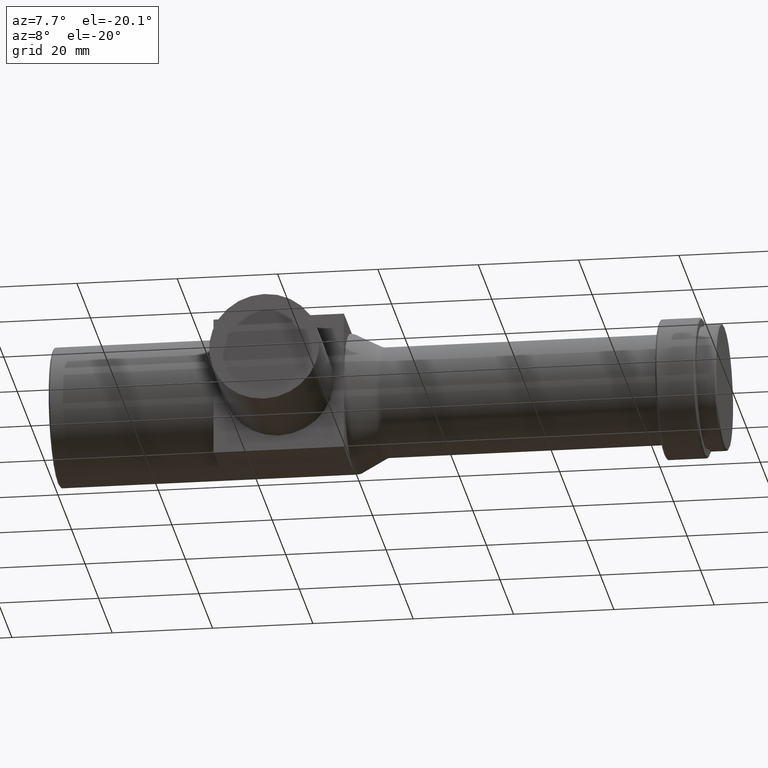
[diagram: clean part render]
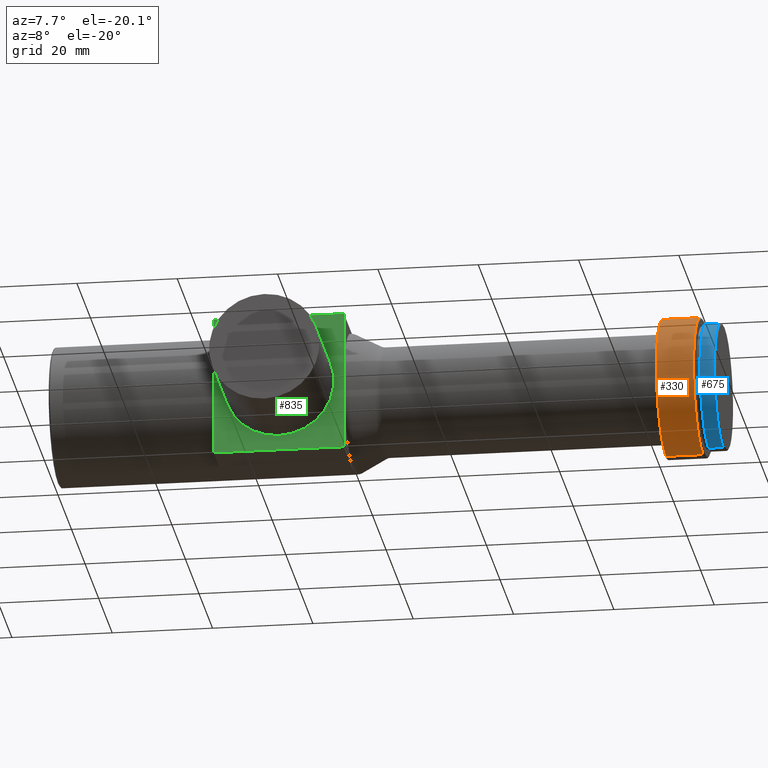
[diagram: same view with three faces highlighted in distinct colors, each labeled with its STEP entity id]
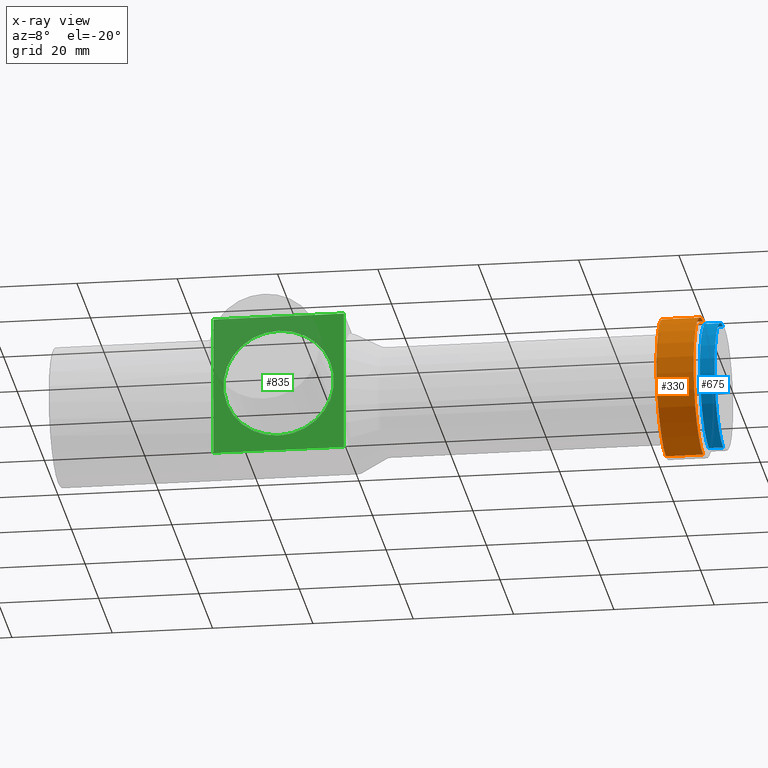
[diagram: x-ray of the same camera — body ghosted, the three highlighted faces saturated]
A machine part, auxiliary view with three faces highlighted in distinct colors.
The next image is the same camera in x-ray (body ghosted, the three faces saturated) — at least one of them is partly hidden behind the body in this view.
Their STEP definitions:

[orange] entity #330 — the highlighted cylindrical surface (partial cylindrical patch) has radius 14 mm, axis along (-1, -0, -0).
#30 = CIRCLE ( 'NONE', #1086, 14.00000000000000000 ) ;
#59 = CARTESIAN_POINT ( 'NONE',  ( 128.6000000000000200, 0.0000000000000000000, 14.00000000000000000 ) ) ;
#69 = VERTEX_POINT ( 'NONE', #231 ) ;
#75 = CARTESIAN_POINT ( 'NONE',  ( 121.2000000000000000, 1.714505518806294600E-015, 14.00000000000000000 ) ) ;
#122 = VERTEX_POINT ( 'NONE', #59 ) ;
#164 = FACE_OUTER_BOUND ( 'NONE', #458, .T. ) ;
#170 = DIRECTION ( 'NONE',  ( -1.000000000000000000, -0.0000000000000000000, -0.0000000000000000000 ) ) ;
#189 = VECTOR ( 'NONE', #360, 1000.000000000000000 ) ;
#197 = EDGE_CURVE ( 'NONE', #873, #122, #906, .T. ) ;
#223 = VERTEX_POINT ( 'NONE', #75 ) ;
#231 = CARTESIAN_POINT ( 'NONE',  ( 121.2000000000000000, 0.0000000000000000000, -14.00000000000000000 ) ) ;
#244 = LINE ( 'NONE', #934, #446 ) ;
#249 = DIRECTION ( 'NONE',  ( -1.000000000000000000, -0.0000000000000000000, -0.0000000000000000000 ) ) ;
#252 = EDGE_CURVE ( 'NONE', #873, #69, #244, .T. ) ;
#286 = AXIS2_PLACEMENT_3D ( 'NONE', #842, #170, #1099 ) ;
#330 = ADVANCED_FACE ( 'NONE', ( #164 ), #469, .T. ) ;
#360 = DIRECTION ( 'NONE',  ( -1.000000000000000000, -0.0000000000000000000, -0.0000000000000000000 ) ) ;
#439 = CARTESIAN_POINT ( 'NONE',  ( 0.0000000000000000000, 0.0000000000000000000, 14.00000000000000000 ) ) ;
#446 = VECTOR ( 'NONE', #588, 1000.000000000000000 ) ;
#458 = EDGE_LOOP ( 'NONE', ( #478, #912, #593, #636 ) ) ;
#469 = CYLINDRICAL_SURFACE ( 'NONE', #494, 14.00000000000000000 ) ;
#478 = ORIENTED_EDGE ( 'NONE', *, *, #252, .F. ) ;
#482 = EDGE_CURVE ( 'NONE', #122, #223, #838, .T. ) ;
#494 = AXIS2_PLACEMENT_3D ( 'NONE', #678, #249, #847 ) ;
#499 = EDGE_CURVE ( 'NONE', #69, #223, #30, .T. ) ;
#588 = DIRECTION ( 'NONE',  ( -1.000000000000000000, -0.0000000000000000000, -0.0000000000000000000 ) ) ;
#593 = ORIENTED_EDGE ( 'NONE', *, *, #482, .T. ) ;
#636 = ORIENTED_EDGE ( 'NONE', *, *, #499, .F. ) ;
#638 = CARTESIAN_POINT ( 'NONE',  ( 121.2000000000000000, 0.0000000000000000000, 0.0000000000000000000 ) ) ;
#678 = CARTESIAN_POINT ( 'NONE',  ( 0.0000000000000000000, 0.0000000000000000000, 0.0000000000000000000 ) ) ;
#810 = DIRECTION ( 'NONE',  ( 0.0000000000000000000, 0.0000000000000000000, 1.000000000000000000 ) ) ;
#838 = LINE ( 'NONE', #439, #189 ) ;
#842 = CARTESIAN_POINT ( 'NONE',  ( 128.6000000000000200, 0.0000000000000000000, 0.0000000000000000000 ) ) ;
#847 = DIRECTION ( 'NONE',  ( 0.0000000000000000000, 0.0000000000000000000, 1.000000000000000000 ) ) ;
#873 = VERTEX_POINT ( 'NONE', #1025 ) ;
#906 = CIRCLE ( 'NONE', #286, 14.00000000000000000 ) ;
#912 = ORIENTED_EDGE ( 'NONE', *, *, #197, .T. ) ;
#934 = CARTESIAN_POINT ( 'NONE',  ( 0.0000000000000000000, 1.714505518806294600E-015, -14.00000000000000000 ) ) ;
#1025 = CARTESIAN_POINT ( 'NONE',  ( 128.6000000000000200, 1.714505518806294600E-015, -14.00000000000000000 ) ) ;
#1059 = DIRECTION ( 'NONE',  ( -1.000000000000000000, -0.0000000000000000000, -0.0000000000000000000 ) ) ;
#1086 = AXIS2_PLACEMENT_3D ( 'NONE', #638, #1059, #810 ) ;
#1099 = DIRECTION ( 'NONE',  ( 0.0000000000000000000, 0.0000000000000000000, 1.000000000000000000 ) ) ;

[blue] entity #675 — the highlighted cylindrical surface (partial cylindrical patch) has radius 12.7 mm, axis along (-1, -0, -0).
#17 = EDGE_CURVE ( 'NONE', #844, #782, #157, .T. ) ;
#34 = VECTOR ( 'NONE', #485, 1000.000000000000000 ) ;
#41 = AXIS2_PLACEMENT_3D ( 'NONE', #217, #229, #318 ) ;
#48 = VERTEX_POINT ( 'NONE', #561 ) ;
#58 = EDGE_CURVE ( 'NONE', #525, #48, #794, .T. ) ;
#131 = VECTOR ( 'NONE', #301, 1000.000000000000000 ) ;
#157 = LINE ( 'NONE', #731, #131 ) ;
#196 = DIRECTION ( 'NONE',  ( 0.0000000000000000000, 0.0000000000000000000, 1.000000000000000000 ) ) ;
#217 = CARTESIAN_POINT ( 'NONE',  ( 0.0000000000000000000, 0.0000000000000000000, 0.0000000000000000000 ) ) ;
#229 = DIRECTION ( 'NONE',  ( -1.000000000000000000, -0.0000000000000000000, -0.0000000000000000000 ) ) ;
#278 = CARTESIAN_POINT ( 'NONE',  ( 129.7000000000000200, 0.0000000000000000000, 0.0000000000000000000 ) ) ;
#301 = DIRECTION ( 'NONE',  ( -1.000000000000000000, -0.0000000000000000000, -0.0000000000000000000 ) ) ;
#310 = DIRECTION ( 'NONE',  ( 0.0000000000000000000, 0.0000000000000000000, 1.000000000000000000 ) ) ;
#318 = DIRECTION ( 'NONE',  ( 0.0000000000000000000, 0.0000000000000000000, 1.000000000000000000 ) ) ;
#331 = ORIENTED_EDGE ( 'NONE', *, *, #17, .T. ) ;
#417 = EDGE_CURVE ( 'NONE', #48, #782, #887, .T. ) ;
#467 = ORIENTED_EDGE ( 'NONE', *, *, #650, .T. ) ;
#485 = DIRECTION ( 'NONE',  ( -1.000000000000000000, -0.0000000000000000000, -0.0000000000000000000 ) ) ;
#525 = VERTEX_POINT ( 'NONE', #971 ) ;
#561 = CARTESIAN_POINT ( 'NONE',  ( 129.7000000000000200, 1.555301434917139000E-015, -12.70000000000000500 ) ) ;
#582 = CARTESIAN_POINT ( 'NONE',  ( 129.7000000000000200, 0.0000000000000000000, 12.70000000000000500 ) ) ;
#603 = CARTESIAN_POINT ( 'NONE',  ( 132.6000000000000200, 0.0000000000000000000, 12.70000000000000500 ) ) ;
#629 = ORIENTED_EDGE ( 'NONE', *, *, #417, .F. ) ;
#639 = ORIENTED_EDGE ( 'NONE', *, *, #58, .F. ) ;
#643 = CARTESIAN_POINT ( 'NONE',  ( 132.6000000000000200, 0.0000000000000000000, 0.0000000000000000000 ) ) ;
#650 = EDGE_CURVE ( 'NONE', #525, #844, #854, .T. ) ;
#675 = ADVANCED_FACE ( 'NONE', ( #680 ), #964, .T. ) ;
#680 = FACE_OUTER_BOUND ( 'NONE', #698, .T. ) ;
#698 = EDGE_LOOP ( 'NONE', ( #639, #467, #331, #629 ) ) ;
#703 = DIRECTION ( 'NONE',  ( -1.000000000000000000, -0.0000000000000000000, -0.0000000000000000000 ) ) ;
#731 = CARTESIAN_POINT ( 'NONE',  ( 0.0000000000000000000, 0.0000000000000000000, 12.70000000000000500 ) ) ;
#765 = AXIS2_PLACEMENT_3D ( 'NONE', #278, #703, #196 ) ;
#782 = VERTEX_POINT ( 'NONE', #582 ) ;
#788 = AXIS2_PLACEMENT_3D ( 'NONE', #643, #1074, #310 ) ;
#794 = LINE ( 'NONE', #819, #34 ) ;
#819 = CARTESIAN_POINT ( 'NONE',  ( 0.0000000000000000000, 1.555301434917139000E-015, -12.70000000000000500 ) ) ;
#844 = VERTEX_POINT ( 'NONE', #603 ) ;
#854 = CIRCLE ( 'NONE', #788, 12.70000000000000500 ) ;
#887 = CIRCLE ( 'NONE', #765, 12.70000000000000500 ) ;
#964 = CYLINDRICAL_SURFACE ( 'NONE', #41, 12.70000000000000500 ) ;
#971 = CARTESIAN_POINT ( 'NONE',  ( 132.6000000000000200, 1.555301434917139000E-015, -12.70000000000000500 ) ) ;
#1074 = DIRECTION ( 'NONE',  ( -1.000000000000000000, -0.0000000000000000000, -0.0000000000000000000 ) ) ;

[green] entity #835 — the highlighted planar face has unit normal (0, 1, 0).
#22 = LINE ( 'NONE', #434, #372 ) ;
#23 = VERTEX_POINT ( 'NONE', #822 ) ;
#57 = DIRECTION ( 'NONE',  ( -0.0000000000000000000, 1.000000000000000000, -0.0000000000000000000 ) ) ;
#66 = VERTEX_POINT ( 'NONE', #743 ) ;
#85 = CARTESIAN_POINT ( 'NONE',  ( 32.89999999999999900, -14.00000000000000000, 14.00000000000000000 ) ) ;
#87 = DIRECTION ( 'NONE',  ( -0.0000000000000000000, -0.0000000000000000000, -1.000000000000000000 ) ) ;
#102 = LINE ( 'NONE', #987, #984 ) ;
#123 = ORIENTED_EDGE ( 'NONE', *, *, #718, .T. ) ;
#174 = DIRECTION ( 'NONE',  ( 1.000000000000000000, 0.0000000000000000000, 0.0000000000000000000 ) ) ;
#182 = ORIENTED_EDGE ( 'NONE', *, *, #785, .T. ) ;
#212 = DIRECTION ( 'NONE',  ( 0.0000000000000000000, 0.0000000000000000000, 1.000000000000000000 ) ) ;
#239 = VERTEX_POINT ( 'NONE', #1027 ) ;
#241 = VERTEX_POINT ( 'NONE', #503 ) ;
#275 = EDGE_CURVE ( 'NONE', #241, #979, #1100, .T. ) ;
#314 = EDGE_LOOP ( 'NONE', ( #182, #123 ) ) ;
#370 = VECTOR ( 'NONE', #379, 1000.000000000000000 ) ;
#372 = VECTOR ( 'NONE', #609, 1000.000000000000000 ) ;
#379 = DIRECTION ( 'NONE',  ( -0.0000000000000000000, -0.0000000000000000000, -1.000000000000000000 ) ) ;
#399 = ORIENTED_EDGE ( 'NONE', *, *, #881, .F. ) ;
#412 = EDGE_LOOP ( 'NONE', ( #399, #512, #900, #941, #672, #940 ) ) ;
#430 = CARTESIAN_POINT ( 'NONE',  ( 58.89999999999999100, -14.00000000000000000, 14.00000000000000000 ) ) ;
#434 = CARTESIAN_POINT ( 'NONE',  ( 58.89999999999999100, -14.00000000000000000, 14.00000000000000000 ) ) ;
#451 = AXIS2_PLACEMENT_3D ( 'NONE', #761, #947, #521 ) ;
#503 = CARTESIAN_POINT ( 'NONE',  ( 32.89999999999999900, -14.00000000000000000, 0.0000000000000000000 ) ) ;
#512 = ORIENTED_EDGE ( 'NONE', *, *, #770, .F. ) ;
#516 = EDGE_CURVE ( 'NONE', #526, #241, #717, .T. ) ;
#521 = DIRECTION ( 'NONE',  ( 0.0000000000000000000, -0.0000000000000000000, 1.000000000000000000 ) ) ;
#526 = VERTEX_POINT ( 'NONE', #553 ) ;
#553 = CARTESIAN_POINT ( 'NONE',  ( 32.89999999999999900, -14.00000000000000000, 14.00000000000000000 ) ) ;
#558 = DIRECTION ( 'NONE',  ( -0.0000000000000000000, 1.000000000000000000, -0.0000000000000000000 ) ) ;
#575 = CARTESIAN_POINT ( 'NONE',  ( 45.89999999999999900, -14.00000000000000000, 0.0000000000000000000 ) ) ;
#590 = DIRECTION ( 'NONE',  ( -0.0000000000000000000, -0.0000000000000000000, -1.000000000000000000 ) ) ;
#596 = CARTESIAN_POINT ( 'NONE',  ( 32.89999999999999900, -14.00000000000000000, 14.00000000000000000 ) ) ;
#598 = EDGE_CURVE ( 'NONE', #979, #239, #102, .T. ) ;
#609 = DIRECTION ( 'NONE',  ( -0.0000000000000000000, -0.0000000000000000000, -1.000000000000000000 ) ) ;
#622 = CARTESIAN_POINT ( 'NONE',  ( 32.89999999999999900, -14.00000000000000000, -14.00000000000000000 ) ) ;
#626 = FACE_OUTER_BOUND ( 'NONE', #412, .T. ) ;
#661 = PLANE ( 'NONE',  #451 ) ;
#668 = VECTOR ( 'NONE', #590, 1000.000000000000000 ) ;
#672 = ORIENTED_EDGE ( 'NONE', *, *, #275, .T. ) ;
#691 = CARTESIAN_POINT ( 'NONE',  ( 45.89999999999999900, -14.00000000000000000, -10.99999999999999600 ) ) ;
#708 = LINE ( 'NONE', #1084, #668 ) ;
#711 = CIRCLE ( 'NONE', #757, 10.99999999999999600 ) ;
#717 = LINE ( 'NONE', #817, #370 ) ;
#718 = EDGE_CURVE ( 'NONE', #862, #23, #711, .T. ) ;
#721 = FACE_BOUND ( 'NONE', #314, .T. ) ;
#727 = VECTOR ( 'NONE', #87, 1000.000000000000000 ) ;
#736 = VECTOR ( 'NONE', #174, 1000.000000000000000 ) ;
#743 = CARTESIAN_POINT ( 'NONE',  ( 58.89999999999999100, -14.00000000000000000, 0.0000000000000000000 ) ) ;
#755 = DIRECTION ( 'NONE',  ( 0.0000000000000000000, 0.0000000000000000000, 1.000000000000000000 ) ) ;
#757 = AXIS2_PLACEMENT_3D ( 'NONE', #1060, #558, #212 ) ;
#761 = CARTESIAN_POINT ( 'NONE',  ( 32.89999999999999900, -14.00000000000000000, 14.00000000000000000 ) ) ;
#770 = EDGE_CURVE ( 'NONE', #942, #66, #708, .T. ) ;
#785 = EDGE_CURVE ( 'NONE', #23, #862, #855, .T. ) ;
#817 = CARTESIAN_POINT ( 'NONE',  ( 32.89999999999999900, -14.00000000000000000, 14.00000000000000000 ) ) ;
#822 = CARTESIAN_POINT ( 'NONE',  ( 45.89999999999999900, -14.00000000000000000, 10.99999999999999600 ) ) ;
#827 = LINE ( 'NONE', #596, #736 ) ;
#835 = ADVANCED_FACE ( 'NONE', ( #721, #626 ), #661, .F. ) ;
#855 = CIRCLE ( 'NONE', #871, 10.99999999999999600 ) ;
#862 = VERTEX_POINT ( 'NONE', #691 ) ;
#871 = AXIS2_PLACEMENT_3D ( 'NONE', #575, #57, #755 ) ;
#881 = EDGE_CURVE ( 'NONE', #66, #239, #22, .T. ) ;
#900 = ORIENTED_EDGE ( 'NONE', *, *, #1105, .F. ) ;
#940 = ORIENTED_EDGE ( 'NONE', *, *, #598, .T. ) ;
#941 = ORIENTED_EDGE ( 'NONE', *, *, #516, .T. ) ;
#942 = VERTEX_POINT ( 'NONE', #430 ) ;
#947 = DIRECTION ( 'NONE',  ( 0.0000000000000000000, 1.000000000000000000, 0.0000000000000000000 ) ) ;
#979 = VERTEX_POINT ( 'NONE', #622 ) ;
#984 = VECTOR ( 'NONE', #1070, 1000.000000000000000 ) ;
#987 = CARTESIAN_POINT ( 'NONE',  ( 32.89999999999999900, -14.00000000000000000, -14.00000000000000000 ) ) ;
#1027 = CARTESIAN_POINT ( 'NONE',  ( 58.89999999999999100, -14.00000000000000000, -14.00000000000000000 ) ) ;
#1060 = CARTESIAN_POINT ( 'NONE',  ( 45.89999999999999900, -14.00000000000000000, 0.0000000000000000000 ) ) ;
#1070 = DIRECTION ( 'NONE',  ( 1.000000000000000000, 0.0000000000000000000, 0.0000000000000000000 ) ) ;
#1084 = CARTESIAN_POINT ( 'NONE',  ( 58.89999999999999100, -14.00000000000000000, 14.00000000000000000 ) ) ;
#1100 = LINE ( 'NONE', #85, #727 ) ;
#1105 = EDGE_CURVE ( 'NONE', #526, #942, #827, .T. ) ;